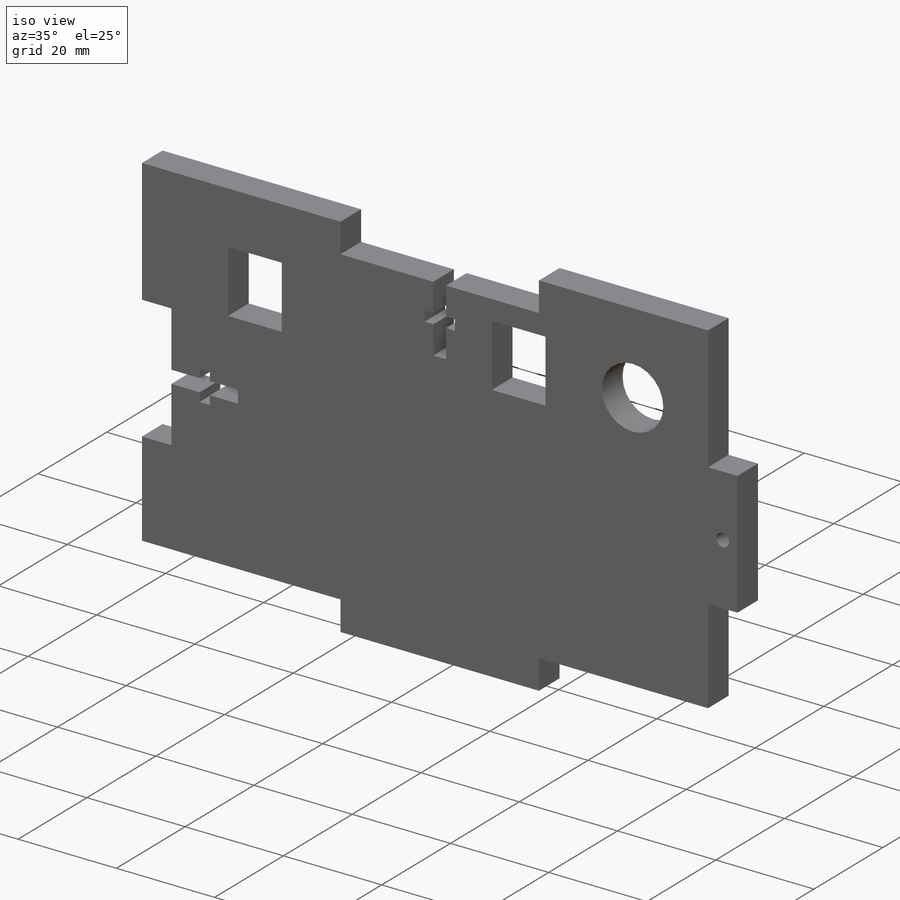
[diagram: iso view]
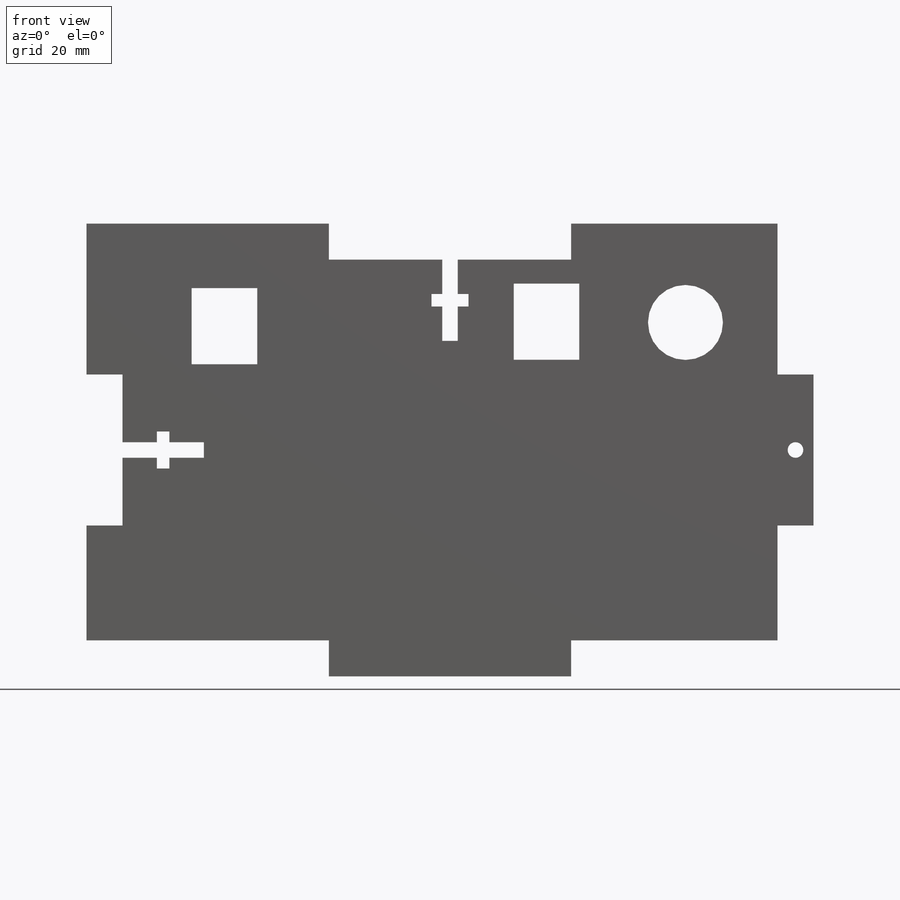
[diagram: front view]
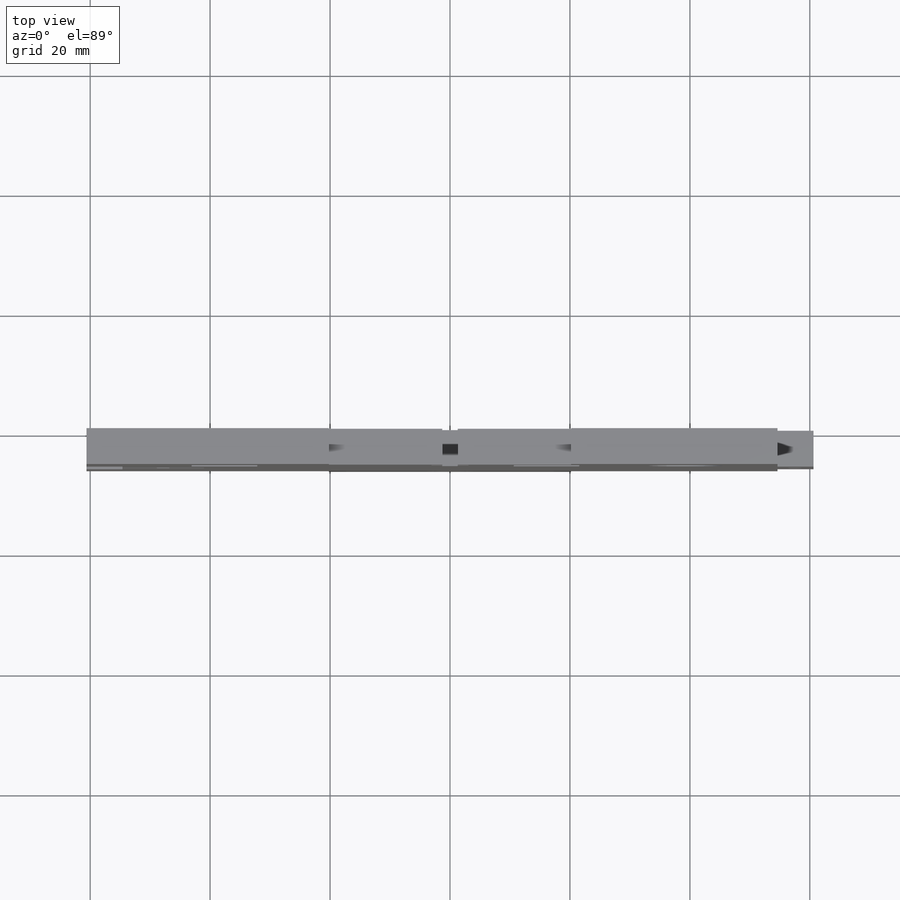
[diagram: top view]
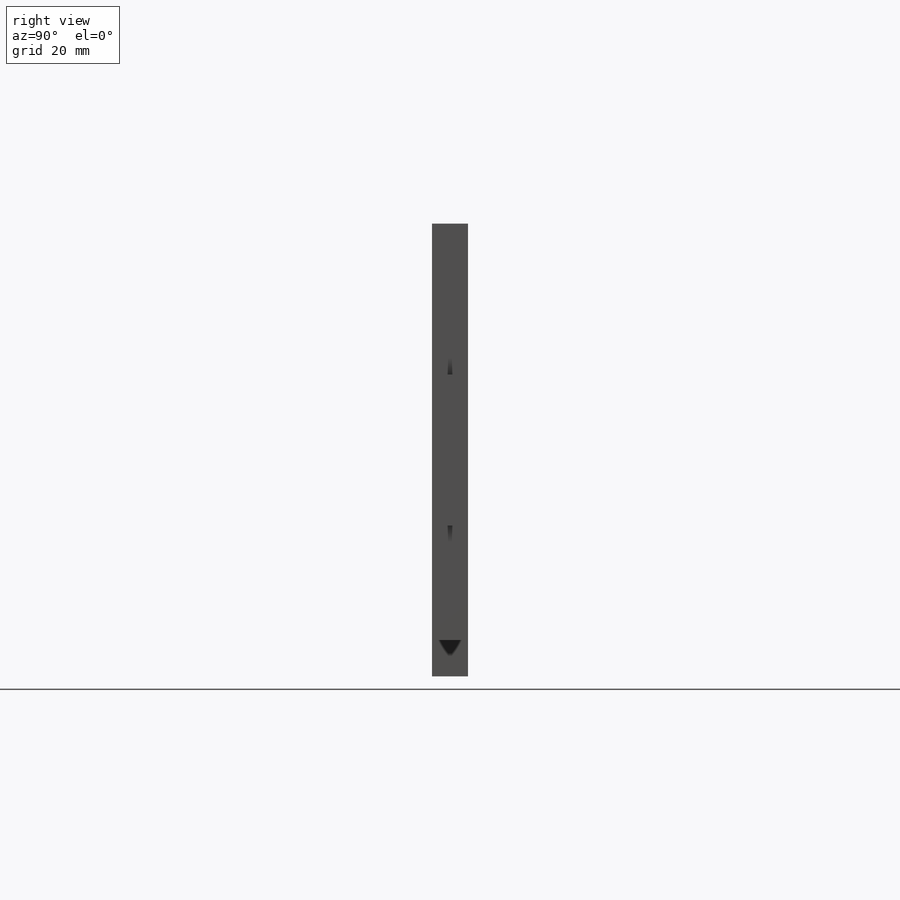
[diagram: right view]
SOLIDWORKS PART (.sldprt)
format: sldprt  version: not decoded by parser v0  size: 296,960 bytes
history: native  units: mm
features: sketch x4, cut_extrude x3, material x1, extrude x1 (+12 scaffold rows collapsed; 1 parser-record rows omitted)
feature tree (22):
  scaffold x12  (default folders/planes/origin — collapsed)
  material  "ABS PC"
  sketch  "Sketch1"  dims[D1=120.8024mm D2=83.9724mm]
  extrude  "Boss-Extrude1"  Depth=5.7912mm
  parser-record x1  (decoder bookkeeping rows leaked as tree rows — omitted from the tree; the rows remain in map.json)
  sketch  "Sketch2"  dims[D1=~40.267467mm D2=5.7912mm D3=~40.267467mm]
  cut_extrude  "Cut-Extrude1"  [1 undecoded]
  sketch  "Sketch9"  dims[c1.D1=5.7912mm c1.D2=20.32mm c1.D3=27.9908mm c2.D2=27.9908mm]
  cut_extrude  "Cut-Extrude8"  [1 undecoded]
  sketch  "Sketch12"  dims[c1.D4=11.7348mm c1.D2=11.7348mm c1.D3=11.7348mm c1.D1=12.7mm c2.D2=12.7mm c2.D3=12.7mm c2.D5=10.7569mm]
  cut_extrude  "Cut-Extrude11"  [1 undecoded]
decode coverage: 5 of 8 modeling features carry decoded parameters
note: ~ marks probable driven/reference dimensions
note: 3 parameter values undecoded
summary: no parameter record found for 3 features
note: suppression state not decoded; provenance and decode notes live in map.json
